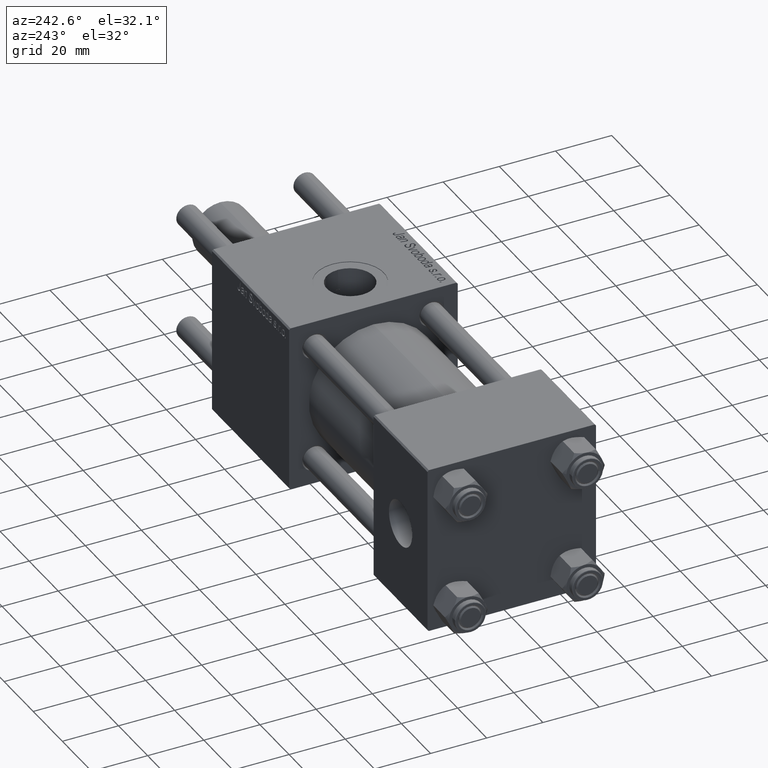
[diagram: clean part render]
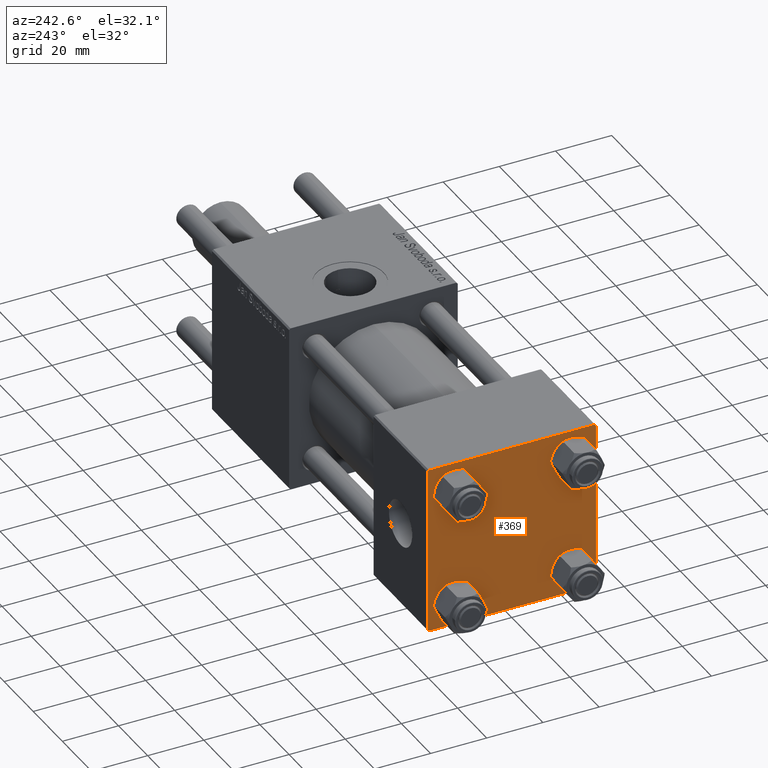
[diagram: same view with one face highlighted and labeled with its STEP entity id]
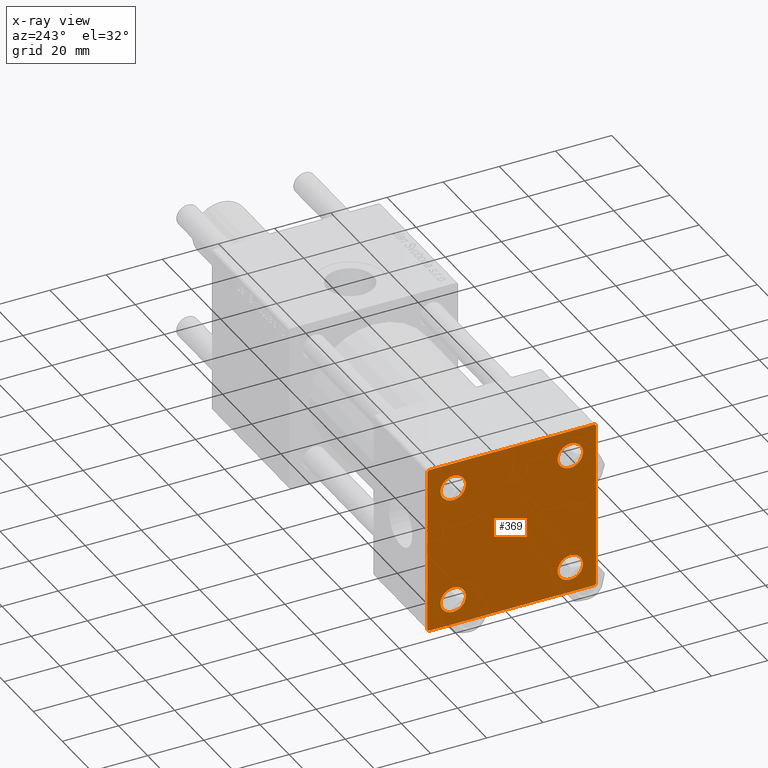
[diagram: x-ray of the same camera — body ghosted, the highlighted face saturated]
A machine part, auxiliary view. The second image highlights one B-rep face of the part: STEP entity #369.
The next image is the same camera in x-ray: the body ghosted, the highlighted face saturated — about 0% of this face is hidden behind the body in this view.
In plain terms, the highlighted planar face has unit normal (-1, 0, 0).
Its self-contained STEP definition (entity closure, byte-faithful):
#205 = DIRECTION ( 'NONE',  ( -0.000000000000000000, -0.7071067811865574537, -0.7071067811865376918 ) ) ;
#311 = ORIENTED_EDGE ( 'NONE', *, *, #50089, .F. ) ;
#369 = ADVANCED_FACE ( 'NONE', ( #57390, #57092, #34406, #48131, #11713 ), #8110, .T. ) ;
#417 = VECTOR ( 'NONE', #15870, 1000.000000000000000 ) ;
#544 = CARTESIAN_POINT ( 'NONE',  ( 0.000000000000000000, -20.84999999999999076, -25.35000000000002274 ) ) ;
#2322 = EDGE_LOOP ( 'NONE', ( #53288, #45246 ) ) ;
#2384 = ORIENTED_EDGE ( 'NONE', *, *, #47261, .T. ) ;
#2437 = CARTESIAN_POINT ( 'NONE',  ( 0.000000000000000000, 29.49999999999997868, -30.00000000000000000 ) ) ;
#2849 = CARTESIAN_POINT ( 'NONE',  ( 0.000000000000000000, 29.74999999999999645, 29.74999999999999645 ) ) ;
#3321 = AXIS2_PLACEMENT_3D ( 'NONE', #30199, #8085, #43921 ) ;
#3438 = CARTESIAN_POINT ( 'NONE',  ( 0.000000000000000000, 20.84999999999999787, -25.35000000000001918 ) ) ;
#3572 = VERTEX_POINT ( 'NONE', #38058 ) ;
#4066 = ORIENTED_EDGE ( 'NONE', *, *, #37420, .T. ) ;
#4076 = VERTEX_POINT ( 'NONE', #3438 ) ;
#4733 = CARTESIAN_POINT ( 'NONE',  ( -0.000000000000000000, -29.74999999999999645, 29.74999999999999645 ) ) ;
#4878 = AXIS2_PLACEMENT_3D ( 'NONE', #52635, #15914, #26851 ) ;
#5032 = EDGE_LOOP ( 'NONE', ( #41917, #2384, #33369, #4066, #27764, #21437, #311, #42624 ) ) ;
#5375 = EDGE_LOOP ( 'NONE', ( #34055, #58112 ) ) ;
#6073 = EDGE_CURVE ( 'NONE', #51711, #23117, #11884, .T. ) ;
#8085 = DIRECTION ( 'NONE',  ( 1.000000000000000000, -0.000000000000000000, 0.000000000000000000 ) ) ;
#8110 = PLANE ( 'NONE',  #13694 ) ;
#8607 = VERTEX_POINT ( 'NONE', #26173 ) ;
#8707 = DIRECTION ( 'NONE',  ( 0.000000000000000000, 0.000000000000000000, 1.000000000000000000 ) ) ;
#9480 = CIRCLE ( 'NONE', #47631, 4.500000000000017764 ) ;
#9508 = CARTESIAN_POINT ( 'NONE',  ( 0.000000000000000000, -29.75000000000001066, -29.75000000000001066 ) ) ;
#9517 = CARTESIAN_POINT ( 'NONE',  ( 0.000000000000000000, -29.49999999999998579, 29.99999999999999289 ) ) ;
#9996 = CIRCLE ( 'NONE', #3321, 4.500000000000017764 ) ;
#10135 = DIRECTION ( 'NONE',  ( 0.000000000000000000, 0.000000000000000000, 1.000000000000000000 ) ) ;
#10364 = CARTESIAN_POINT ( 'NONE',  ( 0.000000000000000000, -20.84999999999999076, 20.85000000000000497 ) ) ;
#10614 = CARTESIAN_POINT ( 'NONE',  ( 0.000000000000000000, -29.50000000000000000, -30.00000000000000711 ) ) ;
#11030 = EDGE_LOOP ( 'NONE', ( #36898, #20218 ) ) ;
#11098 = CARTESIAN_POINT ( 'NONE',  ( 0.000000000000000000, -30.00000000000000000, -29.50000000000001776 ) ) ;
#11713 = FACE_OUTER_BOUND ( 'NONE', #5032, .T. ) ;
#11884 = CIRCLE ( 'NONE', #52888, 4.500000000000017764 ) ;
#12012 = CARTESIAN_POINT ( 'NONE',  ( 0.000000000000000000, 0.000000000000000000, 0.000000000000000000 ) ) ;
#12206 = DIRECTION ( 'NONE',  ( 0.000000000000000000, 0.000000000000000000, 1.000000000000000000 ) ) ;
#12455 = CARTESIAN_POINT ( 'NONE',  ( 0.000000000000000000, -20.84999999999999076, 16.34999999999998721 ) ) ;
#13177 = AXIS2_PLACEMENT_3D ( 'NONE', #36524, #23399, #32062 ) ;
#13694 = AXIS2_PLACEMENT_3D ( 'NONE', #12012, #26333, #16779 ) ;
#14124 = VECTOR ( 'NONE', #55768, 1000.000000000000114 ) ;
#14214 = EDGE_CURVE ( 'NONE', #51226, #47100, #36929, .T. ) ;
#14259 = ORIENTED_EDGE ( 'NONE', *, *, #6073, .T. ) ;
#14436 = VECTOR ( 'NONE', #50992, 1000.000000000000114 ) ;
#14844 = DIRECTION ( 'NONE',  ( 1.000000000000000000, -0.000000000000000000, 0.000000000000000000 ) ) ;
#15210 = EDGE_LOOP ( 'NONE', ( #57762, #14259 ) ) ;
#15253 = EDGE_CURVE ( 'NONE', #4076, #8607, #58873, .T. ) ;
#15870 = DIRECTION ( 'NONE',  ( 0.000000000000000000, -1.000000000000000000, -1.156482317317871725E-16 ) ) ;
#15914 = DIRECTION ( 'NONE',  ( 1.000000000000000000, -0.000000000000000000, 0.000000000000000000 ) ) ;
#16779 = DIRECTION ( 'NONE',  ( -0.000000000000000000, 0.000000000000000000, 1.000000000000000000 ) ) ;
#16866 = LINE ( 'NONE', #21049, #24371 ) ;
#17267 = EDGE_CURVE ( 'NONE', #47842, #18961, #32498, .T. ) ;
#18592 = EDGE_CURVE ( 'NONE', #3572, #58398, #38946, .T. ) ;
#18737 = DIRECTION ( 'NONE',  ( 0.000000000000000000, 0.000000000000000000, 1.000000000000000000 ) ) ;
#18961 = VERTEX_POINT ( 'NONE', #9517 ) ;
#19419 = EDGE_CURVE ( 'NONE', #28946, #58682, #58764, .T. ) ;
#19762 = AXIS2_PLACEMENT_3D ( 'NONE', #44251, #40649, #8707 ) ;
#20218 = ORIENTED_EDGE ( 'NONE', *, *, #15253, .T. ) ;
#21049 = CARTESIAN_POINT ( 'NONE',  ( 0.000000000000000000, -30.00000000000000000, 29.99999999999999289 ) ) ;
#21437 = ORIENTED_EDGE ( 'NONE', *, *, #17267, .T. ) ;
#23117 = VERTEX_POINT ( 'NONE', #28871 ) ;
#23180 = LINE ( 'NONE', #23483, #31776 ) ;
#23399 = DIRECTION ( 'NONE',  ( 1.000000000000000000, -0.000000000000000000, 0.000000000000000000 ) ) ;
#23483 = CARTESIAN_POINT ( 'NONE',  ( 0.000000000000000000, 29.74999999999957723, -29.75000000000040501 ) ) ;
#24084 = CARTESIAN_POINT ( 'NONE',  ( 0.000000000000000000, -20.84999999999999076, -20.85000000000000497 ) ) ;
#24371 = VECTOR ( 'NONE', #53003, 1000.000000000000000 ) ;
#25714 = EDGE_CURVE ( 'NONE', #23117, #51711, #9480, .T. ) ;
#26173 = CARTESIAN_POINT ( 'NONE',  ( 0.000000000000000000, 20.84999999999999787, -16.34999999999998366 ) ) ;
#26333 = DIRECTION ( 'NONE',  ( -1.000000000000000000, 0.000000000000000000, -0.000000000000000000 ) ) ;
#26851 = DIRECTION ( 'NONE',  ( 0.000000000000000000, 0.000000000000000000, 1.000000000000000000 ) ) ;
#27764 = ORIENTED_EDGE ( 'NONE', *, *, #58711, .F. ) ;
#28871 = CARTESIAN_POINT ( 'NONE',  ( 0.000000000000000000, -20.84999999999999076, -16.34999999999998721 ) ) ;
#28946 = VERTEX_POINT ( 'NONE', #2437 ) ;
#30199 = CARTESIAN_POINT ( 'NONE',  ( 0.000000000000000000, 20.84999999999999787, 20.85000000000000142 ) ) ;
#30489 = EDGE_CURVE ( 'NONE', #8607, #4076, #51627, .T. ) ;
#31776 = VECTOR ( 'NONE', #205, 999.9999999999998863 ) ;
#32062 = DIRECTION ( 'NONE',  ( 0.000000000000000000, 0.000000000000000000, 1.000000000000000000 ) ) ;
#32498 = LINE ( 'NONE', #4733, #14124 ) ;
#32786 = VERTEX_POINT ( 'NONE', #58441 ) ;
#32892 = CIRCLE ( 'NONE', #49077, 4.500000000000017764 ) ;
#32927 = DIRECTION ( 'NONE',  ( 0.000000000000000000, 0.000000000000000000, -1.000000000000000000 ) ) ;
#33156 = AXIS2_PLACEMENT_3D ( 'NONE', #45010, #58161, #12206 ) ;
#33369 = ORIENTED_EDGE ( 'NONE', *, *, #19419, .T. ) ;
#34055 = ORIENTED_EDGE ( 'NONE', *, *, #18592, .T. ) ;
#34406 = FACE_BOUND ( 'NONE', #11030, .T. ) ;
#34665 = CARTESIAN_POINT ( 'NONE',  ( 0.000000000000000000, 29.99999999999999289, 30.00000000000000000 ) ) ;
#35085 = LINE ( 'NONE', #2849, #36499 ) ;
#36499 = VECTOR ( 'NONE', #43441, 1000.000000000000114 ) ;
#36524 = CARTESIAN_POINT ( 'NONE',  ( 0.000000000000000000, -20.84999999999999076, 20.85000000000000497 ) ) ;
#36898 = ORIENTED_EDGE ( 'NONE', *, *, #30489, .T. ) ;
#36929 = CIRCLE ( 'NONE', #33156, 4.500000000000017764 ) ;
#37420 = EDGE_CURVE ( 'NONE', #58682, #50116, #55181, .T. ) ;
#38058 = CARTESIAN_POINT ( 'NONE',  ( 0.000000000000000000, -20.84999999999999076, 25.35000000000002274 ) ) ;
#38109 = DIRECTION ( 'NONE',  ( 0.000000000000000000, 0.000000000000000000, 1.000000000000000000 ) ) ;
#38581 = LINE ( 'NONE', #57082, #45976 ) ;
#38946 = CIRCLE ( 'NONE', #13177, 4.500000000000017764 ) ;
#39738 = CARTESIAN_POINT ( 'NONE',  ( 0.000000000000000000, 29.99999999999999289, -29.50000000000000000 ) ) ;
#39741 = VERTEX_POINT ( 'NONE', #39738 ) ;
#40649 = DIRECTION ( 'NONE',  ( 1.000000000000000000, -0.000000000000000000, 0.000000000000000000 ) ) ;
#41496 = CARTESIAN_POINT ( 'NONE',  ( 0.000000000000000000, -20.84999999999999076, -20.85000000000000497 ) ) ;
#41917 = ORIENTED_EDGE ( 'NONE', *, *, #44298, .T. ) ;
#42077 = DIRECTION ( 'NONE',  ( 1.000000000000000000, -0.000000000000000000, 0.000000000000000000 ) ) ;
#42207 = VERTEX_POINT ( 'NONE', #42966 ) ;
#42585 = DIRECTION ( 'NONE',  ( 1.000000000000000000, -0.000000000000000000, 0.000000000000000000 ) ) ;
#42624 = ORIENTED_EDGE ( 'NONE', *, *, #46642, .T. ) ;
#42966 = CARTESIAN_POINT ( 'NONE',  ( 0.000000000000000000, 29.99999999999999289, 29.50000000000000000 ) ) ;
#43299 = CARTESIAN_POINT ( 'NONE',  ( 0.000000000000000000, 20.84999999999999787, 16.34999999999998366 ) ) ;
#43441 = DIRECTION ( 'NONE',  ( 0.000000000000000000, 0.7071067811865474617, -0.7071067811865474617 ) ) ;
#43921 = DIRECTION ( 'NONE',  ( 0.000000000000000000, 0.000000000000000000, 1.000000000000000000 ) ) ;
#44251 = CARTESIAN_POINT ( 'NONE',  ( 0.000000000000000000, 20.84999999999999787, -20.85000000000000142 ) ) ;
#44298 = EDGE_CURVE ( 'NONE', #42207, #39741, #38581, .T. ) ;
#45010 = CARTESIAN_POINT ( 'NONE',  ( 0.000000000000000000, 20.84999999999999787, 20.85000000000000142 ) ) ;
#45246 = ORIENTED_EDGE ( 'NONE', *, *, #52305, .T. ) ;
#45976 = VECTOR ( 'NONE', #32927, 1000.000000000000000 ) ;
#46642 = EDGE_CURVE ( 'NONE', #32786, #42207, #35085, .T. ) ;
#47100 = VERTEX_POINT ( 'NONE', #43299 ) ;
#47261 = EDGE_CURVE ( 'NONE', #39741, #28946, #23180, .T. ) ;
#47631 = AXIS2_PLACEMENT_3D ( 'NONE', #41496, #42077, #10135 ) ;
#47842 = VERTEX_POINT ( 'NONE', #58561 ) ;
#48131 = FACE_BOUND ( 'NONE', #2322, .T. ) ;
#48475 = CARTESIAN_POINT ( 'NONE',  ( 0.000000000000000000, 20.84999999999999787, 25.35000000000001918 ) ) ;
#48936 = DIRECTION ( 'NONE',  ( 0.000000000000000000, -1.000000000000000000, -1.156482317317871725E-16 ) ) ;
#49077 = AXIS2_PLACEMENT_3D ( 'NONE', #10364, #14844, #18737 ) ;
#50089 = EDGE_CURVE ( 'NONE', #32786, #18961, #52003, .T. ) ;
#50116 = VERTEX_POINT ( 'NONE', #11098 ) ;
#50992 = DIRECTION ( 'NONE',  ( 0.000000000000000000, -0.7071067811865474617, 0.7071067811865474617 ) ) ;
#51226 = VERTEX_POINT ( 'NONE', #48475 ) ;
#51627 = CIRCLE ( 'NONE', #4878, 4.500000000000017764 ) ;
#51650 = EDGE_CURVE ( 'NONE', #58398, #3572, #32892, .T. ) ;
#51711 = VERTEX_POINT ( 'NONE', #544 ) ;
#52003 = LINE ( 'NONE', #34665, #417 ) ;
#52305 = EDGE_CURVE ( 'NONE', #47100, #51226, #9996, .T. ) ;
#52635 = CARTESIAN_POINT ( 'NONE',  ( 0.000000000000000000, 20.84999999999999787, -20.85000000000000142 ) ) ;
#52888 = AXIS2_PLACEMENT_3D ( 'NONE', #24084, #42585, #38109 ) ;
#53003 = DIRECTION ( 'NONE',  ( 0.000000000000000000, 0.000000000000000000, -1.000000000000000000 ) ) ;
#53288 = ORIENTED_EDGE ( 'NONE', *, *, #14214, .T. ) ;
#53426 = CARTESIAN_POINT ( 'NONE',  ( 0.000000000000000000, 29.99999999999999289, -30.00000000000000000 ) ) ;
#55181 = LINE ( 'NONE', #9508, #14436 ) ;
#55768 = DIRECTION ( 'NONE',  ( -0.000000000000000000, 0.7071067811865474617, 0.7071067811865474617 ) ) ;
#57082 = CARTESIAN_POINT ( 'NONE',  ( 0.000000000000000000, 29.99999999999999289, 30.00000000000000000 ) ) ;
#57092 = FACE_BOUND ( 'NONE', #15210, .T. ) ;
#57390 = FACE_BOUND ( 'NONE', #5375, .T. ) ;
#57762 = ORIENTED_EDGE ( 'NONE', *, *, #25714, .T. ) ;
#58032 = VECTOR ( 'NONE', #48936, 1000.000000000000000 ) ;
#58112 = ORIENTED_EDGE ( 'NONE', *, *, #51650, .T. ) ;
#58161 = DIRECTION ( 'NONE',  ( 1.000000000000000000, -0.000000000000000000, 0.000000000000000000 ) ) ;
#58398 = VERTEX_POINT ( 'NONE', #12455 ) ;
#58441 = CARTESIAN_POINT ( 'NONE',  ( 0.000000000000000000, 29.49999999999999289, 30.00000000000000000 ) ) ;
#58561 = CARTESIAN_POINT ( 'NONE',  ( 0.000000000000000000, -30.00000000000000000, 29.49999999999999289 ) ) ;
#58682 = VERTEX_POINT ( 'NONE', #10614 ) ;
#58711 = EDGE_CURVE ( 'NONE', #47842, #50116, #16866, .T. ) ;
#58764 = LINE ( 'NONE', #53426, #58032 ) ;
#58873 = CIRCLE ( 'NONE', #19762, 4.500000000000017764 ) ;